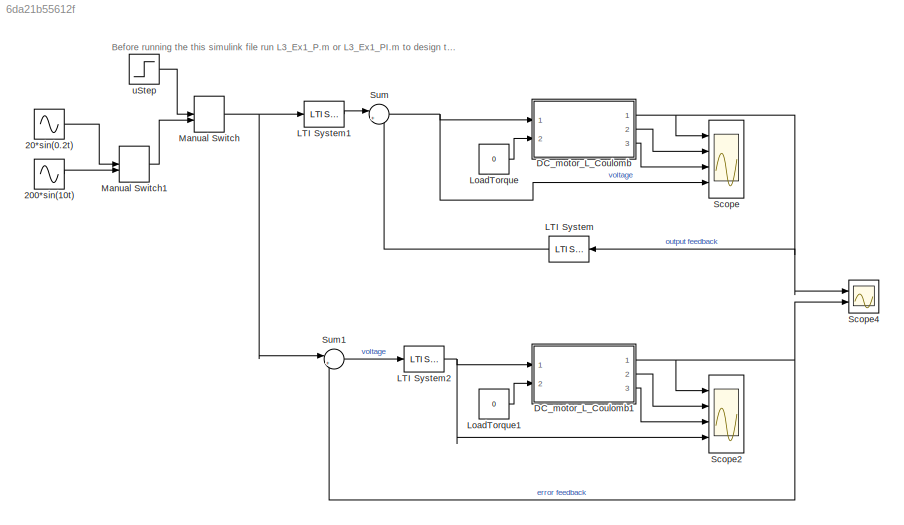
MODEL slx_6da21b55612f
KIND model
CONFIG AbsTol = auto
CONFIG EnableMultiTasking = off
CONFIG FixedStep = auto
CONFIG MaxStep = auto
CONFIG MinStep = auto
CONFIG RelTol = 1e-3
CONFIG SampleTimeConstraint = Unconstrained
CONFIG Solver = VariableStepAuto
CONFIG SolverName = VariableStepAuto
CONFIG StartTime = 0.0
CONFIG StopTime = 2
BLOCK [Sin] 20*sin(0.2t)
  Amplitude = 20
  Frequency = 0.2
  Ports = [0, 1]
  SampleTime = 0
BLOCK [Sin] 200*sin(10t)
  Amplitude = 200
  Frequency = 10
  Ports = [0, 1]
  SampleTime = 0
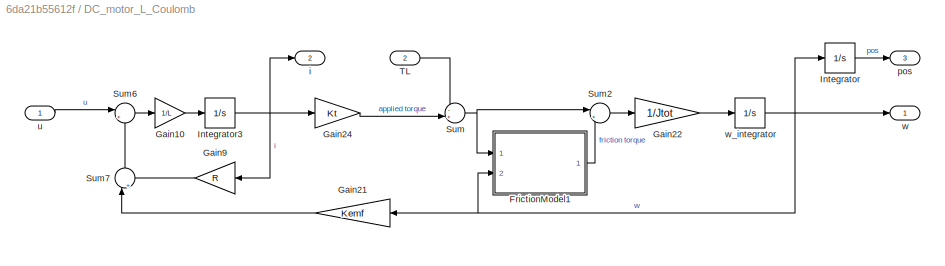
BLOCK [SubSystem] DC_motor_L_Coulomb
  Ports = [2, 3]
  RequestExecContextInheritance = off
  Variant = off
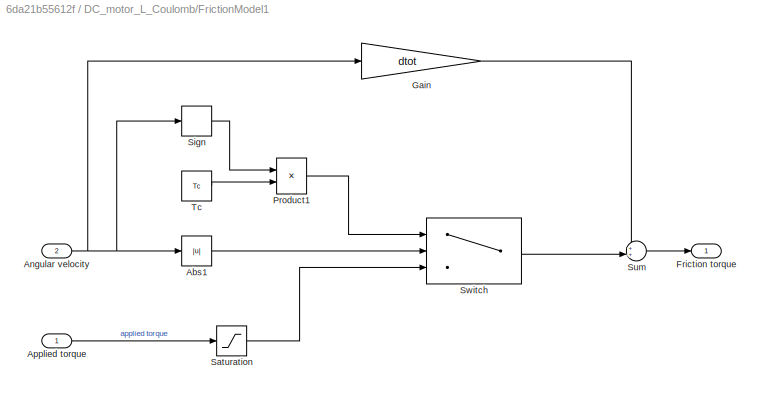
BLOCK [SubSystem] DC_motor_L_Coulomb/FrictionModel1
  Ports = [2, 1]
  RequestExecContextInheritance = off
  Variant = off
BLOCK [Abs] DC_motor_L_Coulomb/FrictionModel1/Abs1
  SaturateOnIntegerOverflow = off
BLOCK [Inport] DC_motor_L_Coulomb/FrictionModel1/Angular velocity
  IconDisplay = Port number
  Port = 2
BLOCK [Inport] DC_motor_L_Coulomb/FrictionModel1/Applied torque
  IconDisplay = Port number
BLOCK [Outport] DC_motor_L_Coulomb/FrictionModel1/Friction torque
  IconDisplay = Port number
BLOCK [Gain] DC_motor_L_Coulomb/FrictionModel1/Gain
  Gain = dtot
  OutDataTypeStr = Inherit: Inherit via internal rule
  ParamDataTypeStr = Inherit: Inherit via internal rule
  SaturateOnIntegerOverflow = off
BLOCK [Product] DC_motor_L_Coulomb/FrictionModel1/Product1
  InputSameDT = off
  OutDataTypeStr = Inherit: Inherit via internal rule
  Ports = [2, 1]
  RndMeth = Floor
  SaturateOnIntegerOverflow = off
BLOCK [Saturate] DC_motor_L_Coulomb/FrictionModel1/Saturation
  InputPortMap = u0
  LowerLimit = -Tc
  Ports = [1, 1]
  UpperLimit = Tc
BLOCK [Signum] DC_motor_L_Coulomb/FrictionModel1/Sign
BLOCK [Sum] DC_motor_L_Coulomb/FrictionModel1/Sum
  IconShape = round
  InputSameDT = off
  Inputs = ++|
  OutDataTypeStr = Inherit: Inherit via internal rule
  Ports = [2, 1]
  SaturateOnIntegerOverflow = off
BLOCK [Switch] DC_motor_L_Coulomb/FrictionModel1/Switch
  Criteria = u2 > Threshold
  InputSameDT = off
  SaturateOnIntegerOverflow = off
  Threshold = 1e-5
BLOCK [Constant] DC_motor_L_Coulomb/FrictionModel1/Tc
  Value = Tc
BLOCK [Gain] DC_motor_L_Coulomb/Gain10
  Gain = 1/L
  OutDataTypeStr = Inherit: Inherit via internal rule
  ParamDataTypeStr = Inherit: Inherit via internal rule
  SaturateOnIntegerOverflow = off
BLOCK [Gain] DC_motor_L_Coulomb/Gain21
  Gain = Kemf
  OutDataTypeStr = Inherit: Inherit via internal rule
  ParamDataTypeStr = Inherit: Inherit via internal rule
  SaturateOnIntegerOverflow = off
BLOCK [Gain] DC_motor_L_Coulomb/Gain22
  Gain = 1/Jtot
  OutDataTypeStr = Inherit: Inherit via internal rule
  ParamDataTypeStr = Inherit: Inherit via internal rule
  SaturateOnIntegerOverflow = off
BLOCK [Gain] DC_motor_L_Coulomb/Gain24
  Gain = Kt
  OutDataTypeStr = Inherit: Inherit via internal rule
  ParamDataTypeStr = Inherit: Inherit via internal rule
  SaturateOnIntegerOverflow = off
BLOCK [Gain] DC_motor_L_Coulomb/Gain9
  Gain = R
  OutDataTypeStr = Inherit: Inherit via internal rule
  ParamDataTypeStr = Inherit: Inherit via internal rule
  SaturateOnIntegerOverflow = off
BLOCK [Integrator] DC_motor_L_Coulomb/Integrator
  Ports = [1, 1]
BLOCK [Integrator] DC_motor_L_Coulomb/Integrator3
  Ports = [1, 1]
BLOCK [Sum] DC_motor_L_Coulomb/Sum
  IconShape = round
  InputSameDT = off
  Inputs = -+|
  OutDataTypeStr = Inherit: Inherit via internal rule
  Ports = [2, 1]
  SaturateOnIntegerOverflow = off
BLOCK [Sum] DC_motor_L_Coulomb/Sum2
  IconShape = round
  InputSameDT = off
  Inputs = |+-
  OutDataTypeStr = Inherit: Inherit via internal rule
  Ports = [2, 1]
  SaturateOnIntegerOverflow = off
BLOCK [Sum] DC_motor_L_Coulomb/Sum6
  IconShape = round
  InputSameDT = off
  Inputs = |+-
  OutDataTypeStr = Inherit: Inherit via internal rule
  Ports = [2, 1]
  SaturateOnIntegerOverflow = off
BLOCK [Sum] DC_motor_L_Coulomb/Sum7
  IconShape = round
  InputSameDT = off
  Inputs = |++
  OutDataTypeStr = Inherit: Inherit via internal rule
  Ports = [2, 1]
  SaturateOnIntegerOverflow = off
BLOCK [Inport] DC_motor_L_Coulomb/TL
  IconDisplay = Port number
  Port = 2
BLOCK [Outport] DC_motor_L_Coulomb/i
  IconDisplay = Port number
  Port = 2
BLOCK [Outport] DC_motor_L_Coulomb/pos
  IconDisplay = Port number
  Port = 3
BLOCK [Inport] DC_motor_L_Coulomb/u
  IconDisplay = Port number
BLOCK [Outport] DC_motor_L_Coulomb/w
  IconDisplay = Port number
BLOCK [Integrator] DC_motor_L_Coulomb/w_integrator
  Ports = [1, 1]
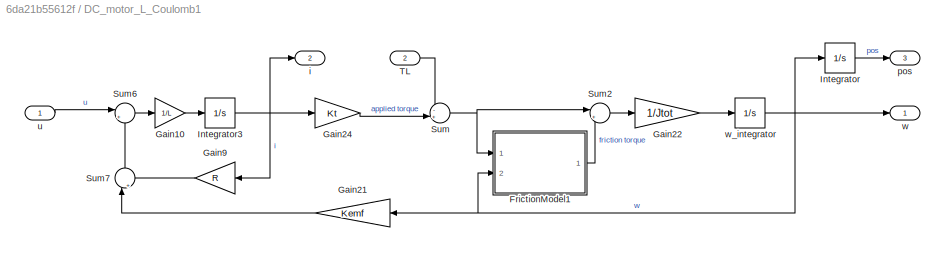
BLOCK [SubSystem] DC_motor_L_Coulomb1
  Ports = [2, 3]
  RequestExecContextInheritance = off
  Variant = off
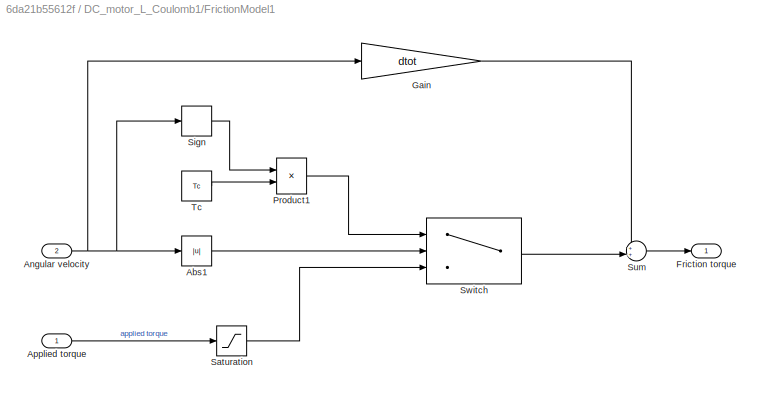
BLOCK [SubSystem] DC_motor_L_Coulomb1/FrictionModel1
  Ports = [2, 1]
  RequestExecContextInheritance = off
  Variant = off
BLOCK [Abs] DC_motor_L_Coulomb1/FrictionModel1/Abs1
  SaturateOnIntegerOverflow = off
BLOCK [Inport] DC_motor_L_Coulomb1/FrictionModel1/Angular velocity
  IconDisplay = Port number
  Port = 2
BLOCK [Inport] DC_motor_L_Coulomb1/FrictionModel1/Applied torque
  IconDisplay = Port number
BLOCK [Outport] DC_motor_L_Coulomb1/FrictionModel1/Friction torque
  IconDisplay = Port number
BLOCK [Gain] DC_motor_L_Coulomb1/FrictionModel1/Gain
  Gain = dtot
  OutDataTypeStr = Inherit: Inherit via internal rule
  ParamDataTypeStr = Inherit: Inherit via internal rule
  SaturateOnIntegerOverflow = off
BLOCK [Product] DC_motor_L_Coulomb1/FrictionModel1/Product1
  InputSameDT = off
  OutDataTypeStr = Inherit: Inherit via internal rule
  Ports = [2, 1]
  RndMeth = Floor
  SaturateOnIntegerOverflow = off
BLOCK [Saturate] DC_motor_L_Coulomb1/FrictionModel1/Saturation
  InputPortMap = u0
  LowerLimit = -Tc
  Ports = [1, 1]
  UpperLimit = Tc
BLOCK [Signum] DC_motor_L_Coulomb1/FrictionModel1/Sign
BLOCK [Sum] DC_motor_L_Coulomb1/FrictionModel1/Sum
  IconShape = round
  InputSameDT = off
  Inputs = ++|
  OutDataTypeStr = Inherit: Inherit via internal rule
  Ports = [2, 1]
  SaturateOnIntegerOverflow = off
BLOCK [Switch] DC_motor_L_Coulomb1/FrictionModel1/Switch
  Criteria = u2 > Threshold
  InputSameDT = off
  SaturateOnIntegerOverflow = off
  Threshold = 1e-5
BLOCK [Constant] DC_motor_L_Coulomb1/FrictionModel1/Tc
  Value = Tc
BLOCK [Gain] DC_motor_L_Coulomb1/Gain10
  Gain = 1/L
  OutDataTypeStr = Inherit: Inherit via internal rule
  ParamDataTypeStr = Inherit: Inherit via internal rule
  SaturateOnIntegerOverflow = off
BLOCK [Gain] DC_motor_L_Coulomb1/Gain21
  Gain = Kemf
  OutDataTypeStr = Inherit: Inherit via internal rule
  ParamDataTypeStr = Inherit: Inherit via internal rule
  SaturateOnIntegerOverflow = off
BLOCK [Gain] DC_motor_L_Coulomb1/Gain22
  Gain = 1/Jtot
  OutDataTypeStr = Inherit: Inherit via internal rule
  ParamDataTypeStr = Inherit: Inherit via internal rule
  SaturateOnIntegerOverflow = off
BLOCK [Gain] DC_motor_L_Coulomb1/Gain24
  Gain = Kt
  OutDataTypeStr = Inherit: Inherit via internal rule
  ParamDataTypeStr = Inherit: Inherit via internal rule
  SaturateOnIntegerOverflow = off
BLOCK [Gain] DC_motor_L_Coulomb1/Gain9
  Gain = R
  OutDataTypeStr = Inherit: Inherit via internal rule
  ParamDataTypeStr = Inherit: Inherit via internal rule
  SaturateOnIntegerOverflow = off
BLOCK [Integrator] DC_motor_L_Coulomb1/Integrator
  Ports = [1, 1]
BLOCK [Integrator] DC_motor_L_Coulomb1/Integrator3
  Ports = [1, 1]
BLOCK [Sum] DC_motor_L_Coulomb1/Sum
  IconShape = round
  InputSameDT = off
  Inputs = -+|
  OutDataTypeStr = Inherit: Inherit via internal rule
  Ports = [2, 1]
  SaturateOnIntegerOverflow = off
BLOCK [Sum] DC_motor_L_Coulomb1/Sum2
  IconShape = round
  InputSameDT = off
  Inputs = |+-
  OutDataTypeStr = Inherit: Inherit via internal rule
  Ports = [2, 1]
  SaturateOnIntegerOverflow = off
BLOCK [Sum] DC_motor_L_Coulomb1/Sum6
  IconShape = round
  InputSameDT = off
  Inputs = |+-
  OutDataTypeStr = Inherit: Inherit via internal rule
  Ports = [2, 1]
  SaturateOnIntegerOverflow = off
BLOCK [Sum] DC_motor_L_Coulomb1/Sum7
  IconShape = round
  InputSameDT = off
  Inputs = |++
  OutDataTypeStr = Inherit: Inherit via internal rule
  Ports = [2, 1]
  SaturateOnIntegerOverflow = off
BLOCK [Inport] DC_motor_L_Coulomb1/TL
  IconDisplay = Port number
  Port = 2
BLOCK [Outport] DC_motor_L_Coulomb1/i
  IconDisplay = Port number
  Port = 2
BLOCK [Outport] DC_motor_L_Coulomb1/pos
  IconDisplay = Port number
  Port = 3
BLOCK [Inport] DC_motor_L_Coulomb1/u
  IconDisplay = Port number
BLOCK [Outport] DC_motor_L_Coulomb1/w
  IconDisplay = Port number
BLOCK [Integrator] DC_motor_L_Coulomb1/w_integrator
  Ports = [1, 1]
BLOCK [Reference] LTI System  REF=cstblocks/LTI System
  Ports = [1, 1]
  SourceBlock = cstblocks/LTI System
  SourceProductBaseCode = CT
  SourceProductName = Control System Toolbox
  SourceType = LTI Block
BLOCK [Reference] LTI System1  REF=cstblocks/LTI System
  Ports = [1, 1]
  SourceBlock = cstblocks/LTI System
  SourceProductBaseCode = CT
  SourceProductName = Control System Toolbox
  SourceType = LTI Block
BLOCK [Reference] LTI System2  REF=cstblocks/LTI System
  Ports = [1, 1]
  SourceBlock = cstblocks/LTI System
  SourceProductBaseCode = CT
  SourceProductName = Control System Toolbox
  SourceType = LTI Block
BLOCK [Constant] LoadTorque
  Value = 0
BLOCK [Constant] LoadTorque1
  Value = 0
BLOCK [ManualSwitch] Manual Switch
BLOCK [ManualSwitch] Manual Switch1
  CurrentSetting = 0
BLOCK [Scope] Scope
  NumInputPorts = 4
  Ports = [4]
  ScopeSpecificationString = Simulink.scopes.TimeScopeBlockCfg('CurrentConfiguration', extmgr.ConfigurationSet(extmgr.Configuration('Core','General UI',true),extmgr.Configuration('Core','Source UI',true),extmgr.Configuration('Sources','WiredSimulink',true),extmgr.Configuration('Visuals','Time Domain',true,'SerializedDisplays',{struct('MinYLimReal','-2.68174','MaxYLimReal','24.1357','YLabelReal','','MinYLimMag','0.00000','MaxY...<+3494ch>
BLOCK [Scope] Scope2
  NumInputPorts = 4
  Ports = [4]
  ScopeSpecificationString = Simulink.scopes.TimeScopeBlockCfg('CurrentConfiguration', extmgr.ConfigurationSet(extmgr.Configuration('Core','General UI',true),extmgr.Configuration('Core','Source UI',true),extmgr.Configuration('Sources','WiredSimulink',true,'DataLoggingVariableName','ScopeData1'),extmgr.Configuration('Visuals','Time Domain',true,'SerializedDisplays',{struct('MinYLimReal','-270.47954','MaxYLimReal','270.47719','...<+3547ch>
BLOCK [Scope] Scope4
  NumInputPorts = 2
  Ports = [2]
  ScopeSpecificationString = Simulink.scopes.TimeScopeBlockCfg('CurrentConfiguration', extmgr.ConfigurationSet(extmgr.Configuration('Core','General UI',true),extmgr.Configuration('Core','Source UI',true),extmgr.Configuration('Sources','WiredSimulink',true,'DataLoggingVariableName','ScopeData3'),extmgr.Configuration('Visuals','Time Domain',true,'SerializedDisplays',{struct('MinYLimReal','-2.72236','MaxYLimReal','24.50126','YLa...<+1466ch>
BLOCK [Sum] Sum
  IconShape = round
  InputSameDT = off
  Inputs = |+-
  OutDataTypeStr = Inherit: Inherit via internal rule
  Ports = [2, 1]
  SaturateOnIntegerOverflow = off
BLOCK [Sum] Sum1
  IconShape = round
  InputSameDT = off
  Inputs = |+-
  OutDataTypeStr = Inherit: Inherit via internal rule
  Ports = [2, 1]
  SaturateOnIntegerOverflow = off
BLOCK [Step] uStep
  After = 20
  SampleTime = 0
ANNOTATION (root): Before running the this simulink file run L3_Ex1_P.m or L3_Ex1_PI.m to design the controller(s)
LINE 20*sin(0.2t):1 -> Manual Switch1:1
LINE 200*sin(10t):1 -> Manual Switch1:2
LINE DC_motor_L_Coulomb/FrictionModel1/Abs1:1 -> DC_motor_L_Coulomb/FrictionModel1/Switch:2
NET DC_motor_L_Coulomb/FrictionModel1/Angular velocity:1 -> DC_motor_L_Coulomb/FrictionModel1/Abs1:1, DC_motor_L_Coulomb/FrictionModel1/Gain:1, DC_motor_L_Coulomb/FrictionModel1/Sign:1
LINE DC_motor_L_Coulomb/FrictionModel1/Applied torque:1 -> DC_motor_L_Coulomb/FrictionModel1/Saturation:1
LINE DC_motor_L_Coulomb/FrictionModel1/Gain:1 -> DC_motor_L_Coulomb/FrictionModel1/Sum:1
LINE DC_motor_L_Coulomb/FrictionModel1/Product1:1 -> DC_motor_L_Coulomb/FrictionModel1/Switch:1
LINE DC_motor_L_Coulomb/FrictionModel1/Saturation:1 -> DC_motor_L_Coulomb/FrictionModel1/Switch:3
LINE DC_motor_L_Coulomb/FrictionModel1/Sign:1 -> DC_motor_L_Coulomb/FrictionModel1/Product1:1
LINE DC_motor_L_Coulomb/FrictionModel1/Sum:1 -> DC_motor_L_Coulomb/FrictionModel1/Friction torque:1
LINE DC_motor_L_Coulomb/FrictionModel1/Switch:1 -> DC_motor_L_Coulomb/FrictionModel1/Sum:2
LINE DC_motor_L_Coulomb/FrictionModel1/Tc:1 -> DC_motor_L_Coulomb/FrictionModel1/Product1:2
LINE DC_motor_L_Coulomb/FrictionModel1:1 -> DC_motor_L_Coulomb/Sum2:2
LINE DC_motor_L_Coulomb/Gain10:1 -> DC_motor_L_Coulomb/Integrator3:1
LINE DC_motor_L_Coulomb/Gain21:1 -> DC_motor_L_Coulomb/Sum7:1
LINE DC_motor_L_Coulomb/Gain22:1 -> DC_motor_L_Coulomb/w_integrator:1
LINE DC_motor_L_Coulomb/Gain24:1 -> DC_motor_L_Coulomb/Sum:2
LINE DC_motor_L_Coulomb/Gain9:1 -> DC_motor_L_Coulomb/Sum7:2
NET DC_motor_L_Coulomb/Integrator3:1 -> DC_motor_L_Coulomb/Gain24:1, DC_motor_L_Coulomb/Gain9:1, DC_motor_L_Coulomb/i:1
LINE DC_motor_L_Coulomb/Integrator:1 -> DC_motor_L_Coulomb/pos:1
LINE DC_motor_L_Coulomb/Sum2:1 -> DC_motor_L_Coulomb/Gain22:1
LINE DC_motor_L_Coulomb/Sum6:1 -> DC_motor_L_Coulomb/Gain10:1
LINE DC_motor_L_Coulomb/Sum7:1 -> DC_motor_L_Coulomb/Sum6:2
NET DC_motor_L_Coulomb/Sum:1 -> DC_motor_L_Coulomb/FrictionModel1:1, DC_motor_L_Coulomb/Sum2:1
LINE DC_motor_L_Coulomb/TL:1 -> DC_motor_L_Coulomb/Sum:1
LINE DC_motor_L_Coulomb/u:1 -> DC_motor_L_Coulomb/Sum6:1
NET DC_motor_L_Coulomb/w_integrator:1 -> DC_motor_L_Coulomb/FrictionModel1:2, DC_motor_L_Coulomb/Gain21:1, DC_motor_L_Coulomb/Integrator:1, DC_motor_L_Coulomb/w:1
LINE DC_motor_L_Coulomb1/FrictionModel1/Abs1:1 -> DC_motor_L_Coulomb1/FrictionModel1/Switch:2
NET DC_motor_L_Coulomb1/FrictionModel1/Angular velocity:1 -> DC_motor_L_Coulomb1/FrictionModel1/Abs1:1, DC_motor_L_Coulomb1/FrictionModel1/Gain:1, DC_motor_L_Coulomb1/FrictionModel1/Sign:1
LINE DC_motor_L_Coulomb1/FrictionModel1/Applied torque:1 -> DC_motor_L_Coulomb1/FrictionModel1/Saturation:1
LINE DC_motor_L_Coulomb1/FrictionModel1/Gain:1 -> DC_motor_L_Coulomb1/FrictionModel1/Sum:1
LINE DC_motor_L_Coulomb1/FrictionModel1/Product1:1 -> DC_motor_L_Coulomb1/FrictionModel1/Switch:1
LINE DC_motor_L_Coulomb1/FrictionModel1/Saturation:1 -> DC_motor_L_Coulomb1/FrictionModel1/Switch:3
LINE DC_motor_L_Coulomb1/FrictionModel1/Sign:1 -> DC_motor_L_Coulomb1/FrictionModel1/Product1:1
LINE DC_motor_L_Coulomb1/FrictionModel1/Sum:1 -> DC_motor_L_Coulomb1/FrictionModel1/Friction torque:1
LINE DC_motor_L_Coulomb1/FrictionModel1/Switch:1 -> DC_motor_L_Coulomb1/FrictionModel1/Sum:2
LINE DC_motor_L_Coulomb1/FrictionModel1/Tc:1 -> DC_motor_L_Coulomb1/FrictionModel1/Product1:2
LINE DC_motor_L_Coulomb1/FrictionModel1:1 -> DC_motor_L_Coulomb1/Sum2:2
LINE DC_motor_L_Coulomb1/Gain10:1 -> DC_motor_L_Coulomb1/Integrator3:1
LINE DC_motor_L_Coulomb1/Gain21:1 -> DC_motor_L_Coulomb1/Sum7:1
LINE DC_motor_L_Coulomb1/Gain22:1 -> DC_motor_L_Coulomb1/w_integrator:1
LINE DC_motor_L_Coulomb1/Gain24:1 -> DC_motor_L_Coulomb1/Sum:2
LINE DC_motor_L_Coulomb1/Gain9:1 -> DC_motor_L_Coulomb1/Sum7:2
NET DC_motor_L_Coulomb1/Integrator3:1 -> DC_motor_L_Coulomb1/Gain24:1, DC_motor_L_Coulomb1/Gain9:1, DC_motor_L_Coulomb1/i:1
LINE DC_motor_L_Coulomb1/Integrator:1 -> DC_motor_L_Coulomb1/pos:1
LINE DC_motor_L_Coulomb1/Sum2:1 -> DC_motor_L_Coulomb1/Gain22:1
LINE DC_motor_L_Coulomb1/Sum6:1 -> DC_motor_L_Coulomb1/Gain10:1
LINE DC_motor_L_Coulomb1/Sum7:1 -> DC_motor_L_Coulomb1/Sum6:2
NET DC_motor_L_Coulomb1/Sum:1 -> DC_motor_L_Coulomb1/FrictionModel1:1, DC_motor_L_Coulomb1/Sum2:1
LINE DC_motor_L_Coulomb1/TL:1 -> DC_motor_L_Coulomb1/Sum:1
LINE DC_motor_L_Coulomb1/u:1 -> DC_motor_L_Coulomb1/Sum6:1
NET DC_motor_L_Coulomb1/w_integrator:1 -> DC_motor_L_Coulomb1/FrictionModel1:2, DC_motor_L_Coulomb1/Gain21:1, DC_motor_L_Coulomb1/Integrator:1, DC_motor_L_Coulomb1/w:1
NET DC_motor_L_Coulomb1:1 -> Scope2:1, Scope4:2, Sum1:2
LINE DC_motor_L_Coulomb1:2 -> Scope2:2
LINE DC_motor_L_Coulomb1:3 -> Scope2:3
NET DC_motor_L_Coulomb:1 -> LTI System:1, Scope4:1, Scope:1
LINE DC_motor_L_Coulomb:2 -> Scope:2
LINE DC_motor_L_Coulomb:3 -> Scope:3
LINE LTI System1:1 -> Sum:1
NET LTI System2:1 -> DC_motor_L_Coulomb1:1, Scope2:4
LINE LTI System:1 -> Sum:2
LINE LoadTorque1:1 -> DC_motor_L_Coulomb1:2
LINE LoadTorque:1 -> DC_motor_L_Coulomb:2
LINE Manual Switch1:1 -> Manual Switch:2
NET Manual Switch:1 -> LTI System1:1, Sum1:1
LINE Sum1:1 -> LTI System2:1
NET Sum:1 -> DC_motor_L_Coulomb:1, Scope:4
LINE uStep:1 -> Manual Switch:1
note: NET lines group one-source signal fan-out (src -> all destinations, sorted); 1:1 wires keep LINE
